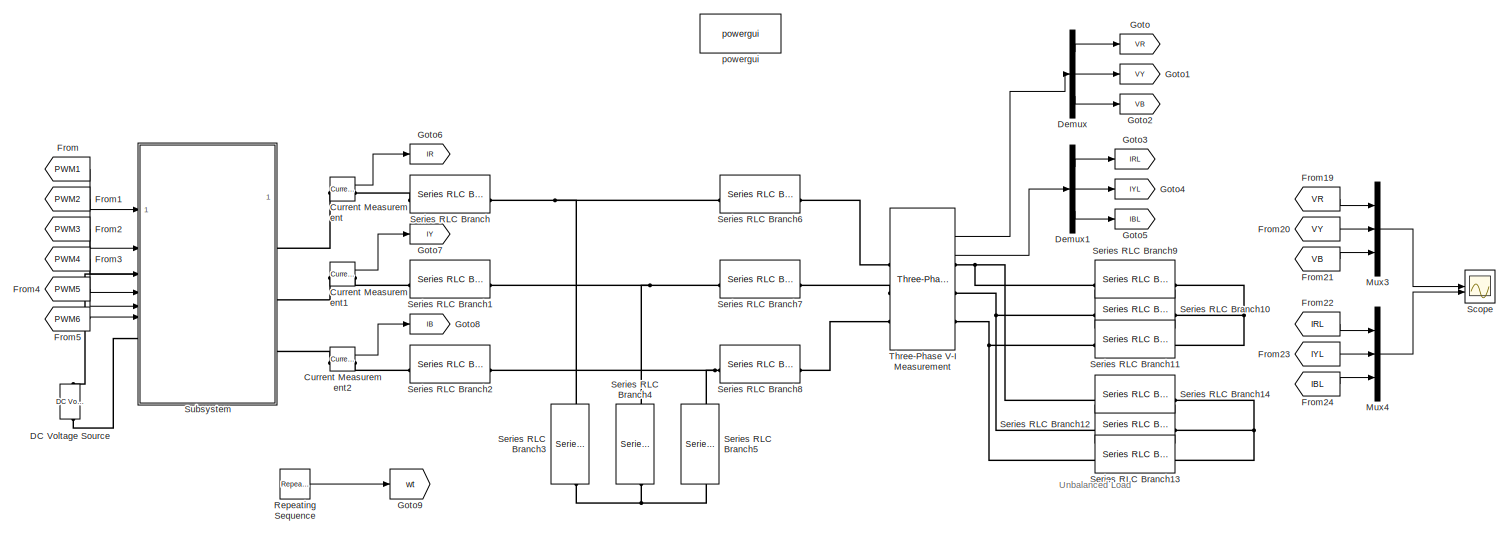
[diagram: root canvas - part 1/2, full width, top band]
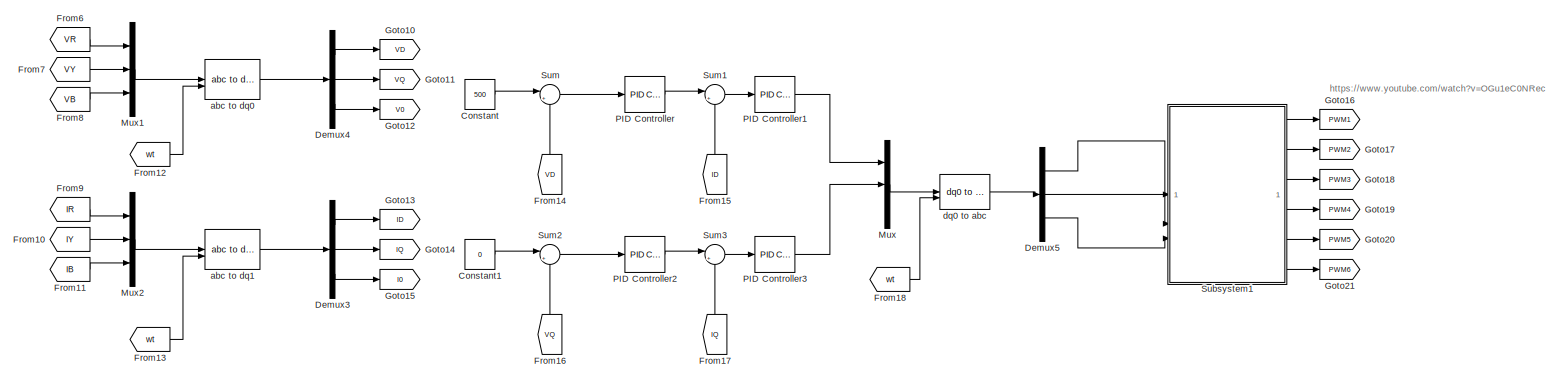
[diagram: root canvas - part 2/2, full width, bottom band]
MODEL slx_b1d2b16878b0
KIND model
CONFIG AbsTol = auto
CONFIG EnableMultiTasking = off
CONFIG FixedStep = auto
CONFIG MaxStep = auto
CONFIG MinStep = auto
CONFIG RelTol = 1e-3
CONFIG SampleTimeConstraint = Unconstrained
CONFIG SolverName = ode23t
CONFIG StartTime = 0.0
CONFIG StopTime = 0.25
BLOCK [Constant] Constant
  Value = 500
BLOCK [Constant] Constant1
  Value = 0
BLOCK [Reference] Current Measurement  REF=spsCurrentMeasurementLib/Current Measurement
  LibrarySourceBlock = sps_lib/Sensors and Measurements/Current Measurement
  SourceBlock = spsCurrentMeasurementLib/Current Measurement
  SourceType = Current Measurement
  UserDataPersistent = on
BLOCK [Reference] Current Measurement1  REF=spsCurrentMeasurementLib/Current Measurement
  LibrarySourceBlock = sps_lib/Sensors and Measurements/Current Measurement
  SourceBlock = spsCurrentMeasurementLib/Current Measurement
  SourceType = Current Measurement
  UserDataPersistent = on
BLOCK [Reference] Current Measurement2  REF=spsCurrentMeasurementLib/Current Measurement
  LibrarySourceBlock = sps_lib/Sensors and Measurements/Current Measurement
  SourceBlock = spsCurrentMeasurementLib/Current Measurement
  SourceType = Current Measurement
  UserDataPersistent = on
BLOCK [Reference] DC Voltage Source  REF=spsDCVoltageSourceLib/DC Voltage Source
  LibrarySourceBlock = sps_lib/Sources/DC Voltage Source
  SourceBlock = spsDCVoltageSourceLib/DC Voltage Source
  SourceType = DC Voltage Source
BLOCK [Demux] Demux
  Outputs = 3
BLOCK [Demux] Demux1
  Outputs = 3
BLOCK [Demux] Demux3
  Outputs = 3
BLOCK [Demux] Demux4
  Outputs = 3
BLOCK [Demux] Demux5
  Outputs = 3
BLOCK [From] From
  GotoTag = PWM1
BLOCK [From] From1
  GotoTag = PWM2
BLOCK [From] From10
  GotoTag = IY
BLOCK [From] From11
  GotoTag = IB
BLOCK [From] From12
  GotoTag = wt
BLOCK [From] From13
  GotoTag = wt
BLOCK [From] From14
  GotoTag = VD
  NameLocation = right
BLOCK [From] From15
  GotoTag = ID
  NameLocation = right
BLOCK [From] From16
  GotoTag = VQ
  NameLocation = right
BLOCK [From] From17
  GotoTag = IQ
  NameLocation = right
BLOCK [From] From18
  GotoTag = wt
BLOCK [From] From19
  GotoTag = VR
BLOCK [From] From2
  GotoTag = PWM3
BLOCK [From] From20
  GotoTag = VY
BLOCK [From] From21
  GotoTag = VB
BLOCK [From] From22
  GotoTag = IRL
BLOCK [From] From23
  GotoTag = IYL
BLOCK [From] From24
  GotoTag = IBL
BLOCK [From] From3
  GotoTag = PWM4
BLOCK [From] From4
  GotoTag = PWM5
BLOCK [From] From5
  GotoTag = PWM6
BLOCK [From] From6
  GotoTag = VR
BLOCK [From] From7
  GotoTag = VY
BLOCK [From] From8
  GotoTag = VB
BLOCK [From] From9
  GotoTag = IR
BLOCK [Goto] Goto
  GotoTag = VR
BLOCK [Goto] Goto1
  GotoTag = VY
BLOCK [Goto] Goto10
  GotoTag = VD
BLOCK [Goto] Goto11
  GotoTag = VQ
BLOCK [Goto] Goto12
  GotoTag = V0
BLOCK [Goto] Goto13
  GotoTag = ID
BLOCK [Goto] Goto14
  GotoTag = IQ
BLOCK [Goto] Goto15
  GotoTag = I0
BLOCK [Goto] Goto16
  GotoTag = PWM1
BLOCK [Goto] Goto17
  GotoTag = PWM2
BLOCK [Goto] Goto18
  GotoTag = PWM3
BLOCK [Goto] Goto19
  GotoTag = PWM4
BLOCK [Goto] Goto2
  GotoTag = VB
BLOCK [Goto] Goto20
  GotoTag = PWM5
BLOCK [Goto] Goto21
  GotoTag = PWM6
BLOCK [Goto] Goto3
  GotoTag = IRL
BLOCK [Goto] Goto4
  GotoTag = IYL
BLOCK [Goto] Goto5
  GotoTag = IBL
BLOCK [Goto] Goto6
  GotoTag = IR
BLOCK [Goto] Goto7
  GotoTag = IY
BLOCK [Goto] Goto8
  GotoTag = IB
BLOCK [Goto] Goto9
  GotoTag = wt
BLOCK [Mux] Mux
  DisplayOption = bar
  Inputs = 3
BLOCK [Mux] Mux1
  DisplayOption = bar
  Inputs = 3
BLOCK [Mux] Mux2
  DisplayOption = bar
  Inputs = 3
BLOCK [Mux] Mux3
  DisplayOption = bar
  Inputs = 3
BLOCK [Mux] Mux4
  DisplayOption = bar
  Inputs = 3
BLOCK [Reference] PID Controller  REF=slpidlib/PID Controller
  LibrarySourceBlock = simulink/Continuous/PID Controller
  SourceBlock = slpidlib/PID Controller
  SourceType = PID 1dof
BLOCK [Reference] PID Controller1  REF=slpidlib/PID Controller
  LibrarySourceBlock = simulink/Continuous/PID Controller
  SourceBlock = slpidlib/PID Controller
  SourceType = PID 1dof
BLOCK [Reference] PID Controller2  REF=slpidlib/PID Controller
  LibrarySourceBlock = simulink/Continuous/PID Controller
  SourceBlock = slpidlib/PID Controller
  SourceType = PID 1dof
BLOCK [Reference] PID Controller3  REF=slpidlib/PID Controller
  LibrarySourceBlock = simulink/Continuous/PID Controller
  SourceBlock = slpidlib/PID Controller
  SourceType = PID 1dof
BLOCK [Reference] Repeating Sequence  REF=simulink/Sources/Repeating
Sequence
  SourceBlock = simulink/Sources/Repeating\nSequence
  SourceType = Repeating table
BLOCK [Scope] Scope
  Floating = off
  NumInputPorts = 2
  ScopeSpecificationString = Simulink.scopes.TimeScopeBlockCfg('CurrentConfiguration', extmgr.ConfigurationSet(extmgr.Configuration('Core','General UI',true),extmgr.Configuration('Core','Source UI',true),extmgr.Configuration('Sources','WiredSimulink',true,'DataLoggingMaxPoints','10000'),extmgr.Configuration('Visuals','Time Domain',true,'SerializedDisplays',{struct('MinYLimReal','-632.11524','MaxYLimReal','632.03267','YLabelRe...<+2042ch>
BLOCK [Reference] Series RLC Branch  REF=spsSeriesRLCBranchLib/Series RLC Branch
  LibrarySourceBlock = sps_lib/Passives/Series RLC Branch
  SourceBlock = spsSeriesRLCBranchLib/Series RLC Branch
  SourceType = Series RLC Branch
BLOCK [Reference] Series RLC Branch1  REF=spsSeriesRLCBranchLib/Series RLC Branch
  LibrarySourceBlock = sps_lib/Passives/Series RLC Branch
  SourceBlock = spsSeriesRLCBranchLib/Series RLC Branch
  SourceType = Series RLC Branch
BLOCK [Reference] Series RLC Branch10  REF=spsSeriesRLCBranchLib/Series RLC Branch
  LibrarySourceBlock = sps_lib/Passives/Series RLC Branch
  SourceBlock = spsSeriesRLCBranchLib/Series RLC Branch
  SourceType = Series RLC Branch
BLOCK [Reference] Series RLC Branch11  REF=spsSeriesRLCBranchLib/Series RLC Branch
  LibrarySourceBlock = sps_lib/Passives/Series RLC Branch
  SourceBlock = spsSeriesRLCBranchLib/Series RLC Branch
  SourceType = Series RLC Branch
BLOCK [Reference] Series RLC Branch12  REF=spsSeriesRLCBranchLib/Series RLC Branch
  Commented = on
  LibrarySourceBlock = sps_lib/Passives/Series RLC Branch
  SourceBlock = spsSeriesRLCBranchLib/Series RLC Branch
  SourceType = Series RLC Branch
BLOCK [Reference] Series RLC Branch13  REF=spsSeriesRLCBranchLib/Series RLC Branch
  Commented = on
  LibrarySourceBlock = sps_lib/Passives/Series RLC Branch
  SourceBlock = spsSeriesRLCBranchLib/Series RLC Branch
  SourceType = Series RLC Branch
BLOCK [Reference] Series RLC Branch14  REF=spsSeriesRLCBranchLib/Series RLC Branch
  Commented = on
  LibrarySourceBlock = sps_lib/Passives/Series RLC Branch
  SourceBlock = spsSeriesRLCBranchLib/Series RLC Branch
  SourceType = Series RLC Branch
BLOCK [Reference] Series RLC Branch2  REF=spsSeriesRLCBranchLib/Series RLC Branch
  LibrarySourceBlock = sps_lib/Passives/Series RLC Branch
  SourceBlock = spsSeriesRLCBranchLib/Series RLC Branch
  SourceType = Series RLC Branch
BLOCK [Reference] Series RLC Branch3  REF=spsSeriesRLCBranchLib/Series RLC Branch
  LibrarySourceBlock = sps_lib/Passives/Series RLC Branch
  NameLocation = left
  SourceBlock = spsSeriesRLCBranchLib/Series RLC Branch
  SourceType = Series RLC Branch
BLOCK [Reference] Series RLC Branch4  REF=spsSeriesRLCBranchLib/Series RLC Branch
  LibrarySourceBlock = sps_lib/Passives/Series RLC Branch
  NameLocation = left
  SourceBlock = spsSeriesRLCBranchLib/Series RLC Branch
  SourceType = Series RLC Branch
BLOCK [Reference] Series RLC Branch5  REF=spsSeriesRLCBranchLib/Series RLC Branch
  LibrarySourceBlock = sps_lib/Passives/Series RLC Branch
  NameLocation = left
  SourceBlock = spsSeriesRLCBranchLib/Series RLC Branch
  SourceType = Series RLC Branch
BLOCK [Reference] Series RLC Branch6  REF=spsSeriesRLCBranchLib/Series RLC Branch
  LibrarySourceBlock = sps_lib/Passives/Series RLC Branch
  SourceBlock = spsSeriesRLCBranchLib/Series RLC Branch
  SourceType = Series RLC Branch
BLOCK [Reference] Series RLC Branch7  REF=spsSeriesRLCBranchLib/Series RLC Branch
  LibrarySourceBlock = sps_lib/Passives/Series RLC Branch
  SourceBlock = spsSeriesRLCBranchLib/Series RLC Branch
  SourceType = Series RLC Branch
BLOCK [Reference] Series RLC Branch8  REF=spsSeriesRLCBranchLib/Series RLC Branch
  LibrarySourceBlock = sps_lib/Passives/Series RLC Branch
  SourceBlock = spsSeriesRLCBranchLib/Series RLC Branch
  SourceType = Series RLC Branch
BLOCK [Reference] Series RLC Branch9  REF=spsSeriesRLCBranchLib/Series RLC Branch
  LibrarySourceBlock = sps_lib/Passives/Series RLC Branch
  SourceBlock = spsSeriesRLCBranchLib/Series RLC Branch
  SourceType = Series RLC Branch
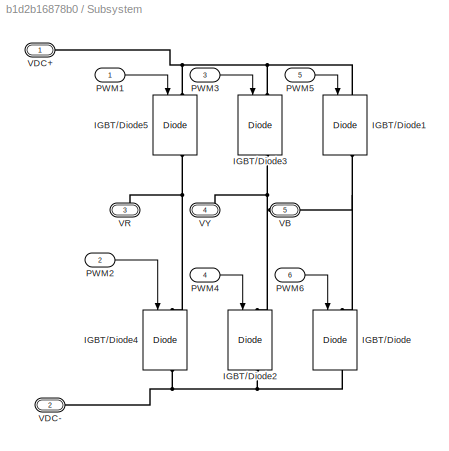
BLOCK [SubSystem] Subsystem
BLOCK [Reference] Subsystem/IGBT//Diode  REF=spsIGBTDiodeLib/IGBT//Diode
  LibrarySourceBlock = sps_lib/Power Electronics/IGBT//Diode
  NameLocation = left
  SourceBlock = spsIGBTDiodeLib/IGBT//Diode
  SourceType = IGBT/Diode
BLOCK [Reference] Subsystem/IGBT//Diode1  REF=spsIGBTDiodeLib/IGBT//Diode
  LibrarySourceBlock = sps_lib/Power Electronics/IGBT//Diode
  NameLocation = left
  SourceBlock = spsIGBTDiodeLib/IGBT//Diode
  SourceType = IGBT/Diode
BLOCK [Reference] Subsystem/IGBT//Diode2  REF=spsIGBTDiodeLib/IGBT//Diode
  LibrarySourceBlock = sps_lib/Power Electronics/IGBT//Diode
  NameLocation = left
  SourceBlock = spsIGBTDiodeLib/IGBT//Diode
  SourceType = IGBT/Diode
BLOCK [Reference] Subsystem/IGBT//Diode3  REF=spsIGBTDiodeLib/IGBT//Diode
  LibrarySourceBlock = sps_lib/Power Electronics/IGBT//Diode
  NameLocation = left
  SourceBlock = spsIGBTDiodeLib/IGBT//Diode
  SourceType = IGBT/Diode
BLOCK [Reference] Subsystem/IGBT//Diode4  REF=spsIGBTDiodeLib/IGBT//Diode
  LibrarySourceBlock = sps_lib/Power Electronics/IGBT//Diode
  NameLocation = left
  SourceBlock = spsIGBTDiodeLib/IGBT//Diode
  SourceType = IGBT/Diode
BLOCK [Reference] Subsystem/IGBT//Diode5  REF=spsIGBTDiodeLib/IGBT//Diode
  LibrarySourceBlock = sps_lib/Power Electronics/IGBT//Diode
  NameLocation = left
  SourceBlock = spsIGBTDiodeLib/IGBT//Diode
  SourceType = IGBT/Diode
BLOCK [Inport] Subsystem/PWM1
BLOCK [Inport] Subsystem/PWM2
  Port = 2
BLOCK [Inport] Subsystem/PWM3
  Port = 3
BLOCK [Inport] Subsystem/PWM4
  Port = 4
BLOCK [Inport] Subsystem/PWM5
  Port = 5
BLOCK [Inport] Subsystem/PWM6
  Port = 6
BLOCK [PMIOPort] Subsystem/VB
  Port = 5
  Side = Right
BLOCK [PMIOPort] Subsystem/VDC+
  Side = Left
BLOCK [PMIOPort] Subsystem/VDC-
  Port = 2
  Side = Left
BLOCK [PMIOPort] Subsystem/VR
  Port = 3
  Side = Right
BLOCK [PMIOPort] Subsystem/VY
  Port = 4
  Side = Right
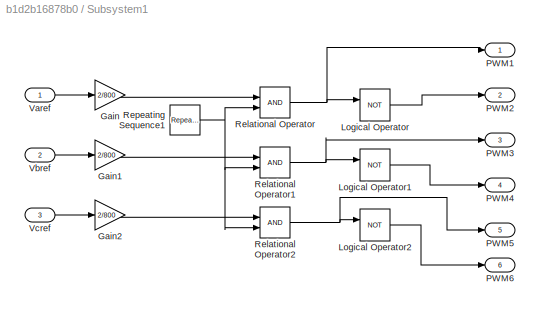
BLOCK [SubSystem] Subsystem1
BLOCK [Gain] Subsystem1/Gain
  Gain = 2/800
BLOCK [Gain] Subsystem1/Gain1
  Gain = 2/800
BLOCK [Gain] Subsystem1/Gain2
  Gain = 2/800
BLOCK [Logic] Subsystem1/Logical Operator
  AllPortsSameDT = off
  Operator = NOT
  OutDataTypeStr = boolean
BLOCK [Logic] Subsystem1/Logical Operator1
  AllPortsSameDT = off
  Operator = NOT
  OutDataTypeStr = boolean
BLOCK [Logic] Subsystem1/Logical Operator2
  AllPortsSameDT = off
  Operator = NOT
  OutDataTypeStr = boolean
BLOCK [Outport] Subsystem1/PWM1
BLOCK [Outport] Subsystem1/PWM2
  Port = 2
BLOCK [Outport] Subsystem1/PWM3
  Port = 3
BLOCK [Outport] Subsystem1/PWM4
  Port = 4
BLOCK [Outport] Subsystem1/PWM5
  Port = 5
BLOCK [Outport] Subsystem1/PWM6
  Port = 6
BLOCK [RelationalOperator] Subsystem1/Relational Operator
  InputSameDT = off
  OutDataTypeStr = boolean
  RndMeth = Simplest
BLOCK [RelationalOperator] Subsystem1/Relational Operator1
  InputSameDT = off
  OutDataTypeStr = boolean
  RndMeth = Simplest
BLOCK [RelationalOperator] Subsystem1/Relational Operator2
  InputSameDT = off
  OutDataTypeStr = boolean
  RndMeth = Simplest
BLOCK [Reference] Subsystem1/Repeating Sequence1  REF=simulink/Sources/Repeating
Sequence
  SourceBlock = simulink/Sources/Repeating\nSequence
  SourceType = Repeating table
BLOCK [Inport] Subsystem1/Varef
BLOCK [Inport] Subsystem1/Vbref
  Port = 2
BLOCK [Inport] Subsystem1/Vcref
  Port = 3
BLOCK [Sum] Sum
  Inputs = |+-
BLOCK [Sum] Sum1
  Inputs = |+-
BLOCK [Sum] Sum2
  Inputs = |+-
BLOCK [Sum] Sum3
  Inputs = |+-
BLOCK [Reference] Three-Phase V-I Measurement  REF=spsThreePhaseVIMeasurementLib/Three-Phase
V-I Measurement
  LibrarySourceBlock = sps_lib/Sensors and Measurements/Three-Phase\nV-I Measurement
  SourceBlock = spsThreePhaseVIMeasurementLib/Three-Phase\nV-I Measurement
  SourceType = Three-Phase VI Measurement
BLOCK [Reference] abc to dq0  REF=spsabctodq0Lib/abc to dq0
  LibrarySourceBlock = sps_lib/Control/abc to dq0
  SourceBlock = spsabctodq0Lib/abc to dq0
  SourceType = abc to dq0 Transformation
BLOCK [Reference] abc to dq1  REF=spsabctodq0Lib/abc to dq0
  LibrarySourceBlock = sps_lib/Control/abc to dq0
  SourceBlock = spsabctodq0Lib/abc to dq0
  SourceType = abc to dq0 Transformation
BLOCK [Reference] dq0 to abc  REF=spsdq0toabcLib/dq0 to abc
  LibrarySourceBlock = sps_lib/Control/dq0 to abc
  SourceBlock = spsdq0toabcLib/dq0 to abc
  SourceType = dq0 to abc Transformation
BLOCK [Reference] powergui  REF=spspowerguiLib/powergui
  LibrarySourceBlock = sps_lib/powergui
  Priority = 1
  SourceBlock = spspowerguiLib/powergui
  SourceType = PSB option menu block
ANNOTATION (root): Unbalanced Load
ANNOTATION (root): https://www.youtube.com/watch?v=OGu1eC0NRec
LINE Constant1:1 -> Sum2:1
LINE Constant:1 -> Sum:1
LINE Current Measurement1:1 -> Goto7:1
LINE Current Measurement2:1 -> Goto8:1
LINE Current Measurement:1 -> Goto6:1
LINE Demux1:1 -> Goto3:1
LINE Demux1:2 -> Goto4:1
LINE Demux1:3 -> Goto5:1
LINE Demux3:1 -> Goto13:1
LINE Demux3:2 -> Goto14:1
LINE Demux3:3 -> Goto15:1
LINE Demux4:1 -> Goto10:1
LINE Demux4:2 -> Goto11:1
LINE Demux4:3 -> Goto12:1
LINE Demux5:1 -> Subsystem1:1
LINE Demux5:2 -> Subsystem1:2
LINE Demux5:3 -> Subsystem1:3
LINE Demux:1 -> Goto:1
LINE Demux:2 -> Goto1:1
LINE Demux:3 -> Goto2:1
LINE From10:1 -> Mux2:2
LINE From11:1 -> Mux2:3
LINE From12:1 -> abc to dq0:2
LINE From13:1 -> abc to dq1:2
LINE From14:1 -> Sum:2
LINE From15:1 -> Sum1:2
LINE From16:1 -> Sum2:2
LINE From17:1 -> Sum3:2
LINE From18:1 -> dq0 to abc:2
LINE From19:1 -> Mux3:1
LINE From1:1 -> Subsystem:2
LINE From20:1 -> Mux3:2
LINE From21:1 -> Mux3:3
LINE From22:1 -> Mux4:1
LINE From23:1 -> Mux4:2
LINE From24:1 -> Mux4:3
LINE From2:1 -> Subsystem:3
LINE From3:1 -> Subsystem:4
LINE From4:1 -> Subsystem:5
LINE From5:1 -> Subsystem:6
LINE From6:1 -> Mux1:1
LINE From7:1 -> Mux1:2
LINE From8:1 -> Mux1:3
LINE From9:1 -> Mux2:1
LINE From:1 -> Subsystem:1
LINE Mux1:1 -> abc to dq0:1
LINE Mux2:1 -> abc to dq1:1
LINE Mux3:1 -> Scope:1
LINE Mux4:1 -> Scope:2
LINE Mux:1 -> dq0 to abc:1
LINE PID Controller1:1 -> Mux:1
LINE PID Controller2:1 -> Sum3:1
LINE PID Controller3:1 -> Mux:2
LINE PID Controller:1 -> Sum1:1
LINE Repeating Sequence:1 -> Goto9:1
LINE Subsystem/PWM1:1 -> Subsystem/IGBT//Diode5:1
LINE Subsystem/PWM2:1 -> Subsystem/IGBT//Diode4:1
LINE Subsystem/PWM3:1 -> Subsystem/IGBT//Diode3:1
LINE Subsystem/PWM4:1 -> Subsystem/IGBT//Diode2:1
LINE Subsystem/PWM5:1 -> Subsystem/IGBT//Diode1:1
LINE Subsystem/PWM6:1 -> Subsystem/IGBT//Diode:1
LINE Subsystem1/Gain1:1 -> Subsystem1/Relational Operator1:1
LINE Subsystem1/Gain2:1 -> Subsystem1/Relational Operator2:1
LINE Subsystem1/Gain:1 -> Subsystem1/Relational Operator:1
LINE Subsystem1/Logical Operator1:1 -> Subsystem1/PWM4:1
LINE Subsystem1/Logical Operator2:1 -> Subsystem1/PWM6:1
LINE Subsystem1/Logical Operator:1 -> Subsystem1/PWM2:1
NET Subsystem1/Relational Operator1:1 -> Subsystem1/Logical Operator1:1, Subsystem1/PWM3:1
NET Subsystem1/Relational Operator2:1 -> Subsystem1/Logical Operator2:1, Subsystem1/PWM5:1
NET Subsystem1/Relational Operator:1 -> Subsystem1/Logical Operator:1, Subsystem1/PWM1:1
NET Subsystem1/Repeating Sequence1:1 -> Subsystem1/Relational Operator1:2, Subsystem1/Relational Operator2:2, Subsystem1/Relational Operator:2
LINE Subsystem1/Varef:1 -> Subsystem1/Gain:1
LINE Subsystem1/Vbref:1 -> Subsystem1/Gain1:1
LINE Subsystem1/Vcref:1 -> Subsystem1/Gain2:1
LINE Subsystem1:1 -> Goto16:1
LINE Subsystem1:2 -> Goto17:1
LINE Subsystem1:3 -> Goto18:1
LINE Subsystem1:4 -> Goto19:1
LINE Subsystem1:5 -> Goto20:1
LINE Subsystem1:6 -> Goto21:1
LINE Sum1:1 -> PID Controller1:1
LINE Sum2:1 -> PID Controller2:1
LINE Sum3:1 -> PID Controller3:1
LINE Sum:1 -> PID Controller:1
LINE Three-Phase V-I Measurement:1 -> Demux:1
LINE Three-Phase V-I Measurement:2 -> Demux1:1
LINE abc to dq0:1 -> Demux4:1
LINE abc to dq1:1 -> Demux3:1
LINE dq0 to abc:1 -> Demux5:1
PLINE Current Measurement1:LConn1 -- Subsystem:RConn2
PLINE Current Measurement1:RConn1 -- Series RLC Branch1:LConn1
PLINE Current Measurement2:LConn1 -- Subsystem:RConn3
PLINE Current Measurement2:RConn1 -- Series RLC Branch2:LConn1
PLINE Current Measurement:LConn1 -- Subsystem:RConn1
PLINE Current Measurement:RConn1 -- Series RLC Branch:LConn1
PLINE DC Voltage Source:LConn1 -- Subsystem:LConn2
PLINE DC Voltage Source:RConn1 -- Subsystem:LConn1
PNET net1: Series RLC Branch10:LConn1 -- Series RLC Branch12:LConn1 -- Three-Phase V-I Measurement:RConn2
PNET net2: Series RLC Branch10:RConn1 -- Series RLC Branch11:RConn1 -- Series RLC Branch9:RConn1
PNET net3: Series RLC Branch11:LConn1 -- Series RLC Branch13:LConn1 -- Three-Phase V-I Measurement:RConn3
PNET net4: Series RLC Branch12:RConn1 -- Series RLC Branch13:RConn1 -- Series RLC Branch14:RConn1
PNET net5: Series RLC Branch14:LConn1 -- Series RLC Branch9:LConn1 -- Three-Phase V-I Measurement:RConn1
PNET net6: Series RLC Branch1:RConn1 -- Series RLC Branch4:LConn1 -- Series RLC Branch7:LConn1
PNET net7: Series RLC Branch2:RConn1 -- Series RLC Branch5:LConn1 -- Series RLC Branch8:LConn1
PNET net8: Series RLC Branch3:LConn1 -- Series RLC Branch6:LConn1 -- Series RLC Branch:RConn1
PNET net9: Series RLC Branch3:RConn1 -- Series RLC Branch4:RConn1 -- Series RLC Branch5:RConn1
PLINE Series RLC Branch6:RConn1 -- Three-Phase V-I Measurement:LConn1
PLINE Series RLC Branch7:RConn1 -- Three-Phase V-I Measurement:LConn2
PLINE Series RLC Branch8:RConn1 -- Three-Phase V-I Measurement:LConn3
PNET net10: Subsystem/IGBT//Diode1:LConn1 -- Subsystem/IGBT//Diode3:LConn1 -- Subsystem/IGBT//Diode5:LConn1 -- Subsystem/VDC+:RConn1
PNET net11: Subsystem/IGBT//Diode1:RConn1 -- Subsystem/IGBT//Diode:LConn1 -- Subsystem/VB:RConn1
PNET net12: Subsystem/IGBT//Diode2:LConn1 -- Subsystem/IGBT//Diode3:RConn1 -- Subsystem/VY:RConn1
PNET net13: Subsystem/IGBT//Diode2:RConn1 -- Subsystem/IGBT//Diode4:RConn1 -- Subsystem/IGBT//Diode:RConn1 -- Subsystem/VDC-:RConn1
PNET net14: Subsystem/IGBT//Diode4:LConn1 -- Subsystem/IGBT//Diode5:RConn1 -- Subsystem/VR:RConn1
note: NET lines group one-source signal fan-out (src -> all destinations, sorted); 1:1 wires keep LINE; PNET lines group multi-terminal physical nets as a canonical sorted terminal list (undirected conserving connections); 2-terminal nets keep the pairwise PLINE form
